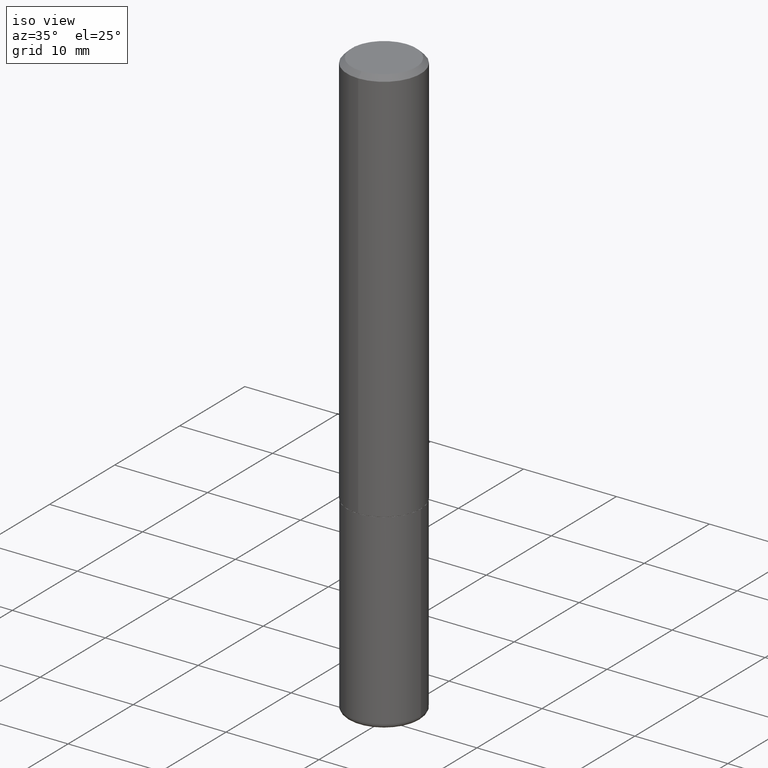
[diagram: clean part render]
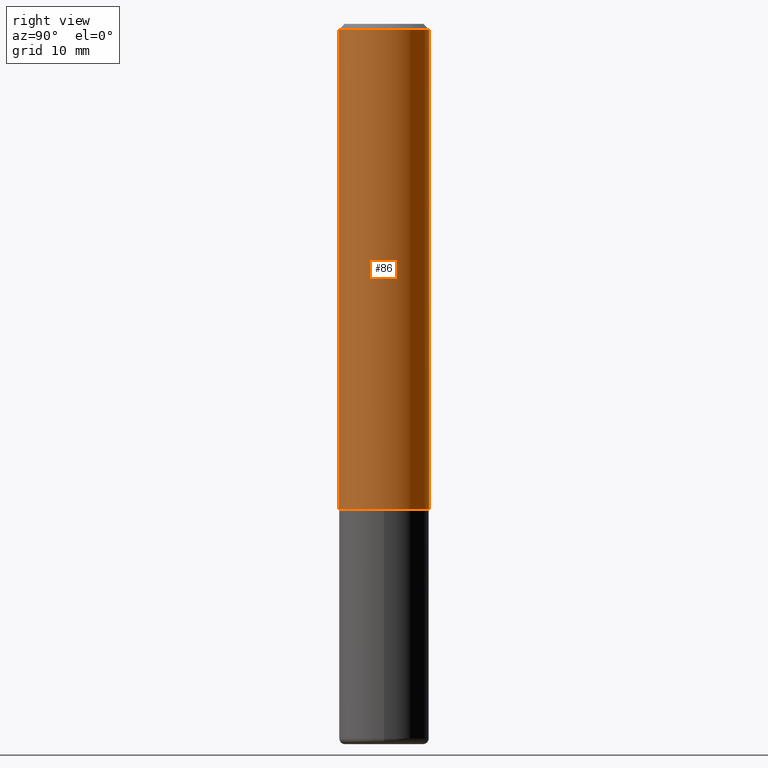
[diagram: tour spotlight — one face highlighted and labeled with its STEP entity id]
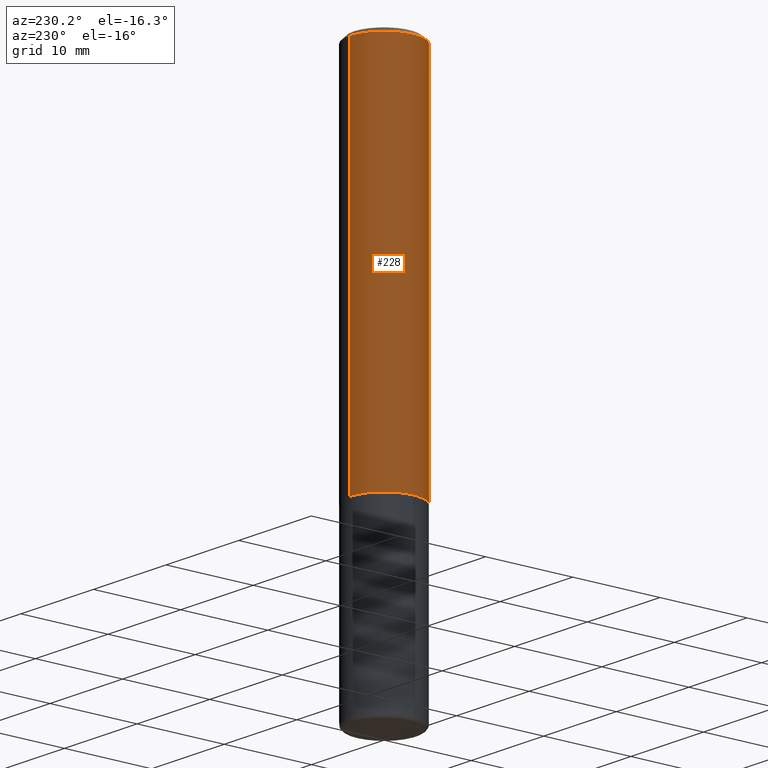
[diagram: tour spotlight — one face highlighted and labeled with its STEP entity id]
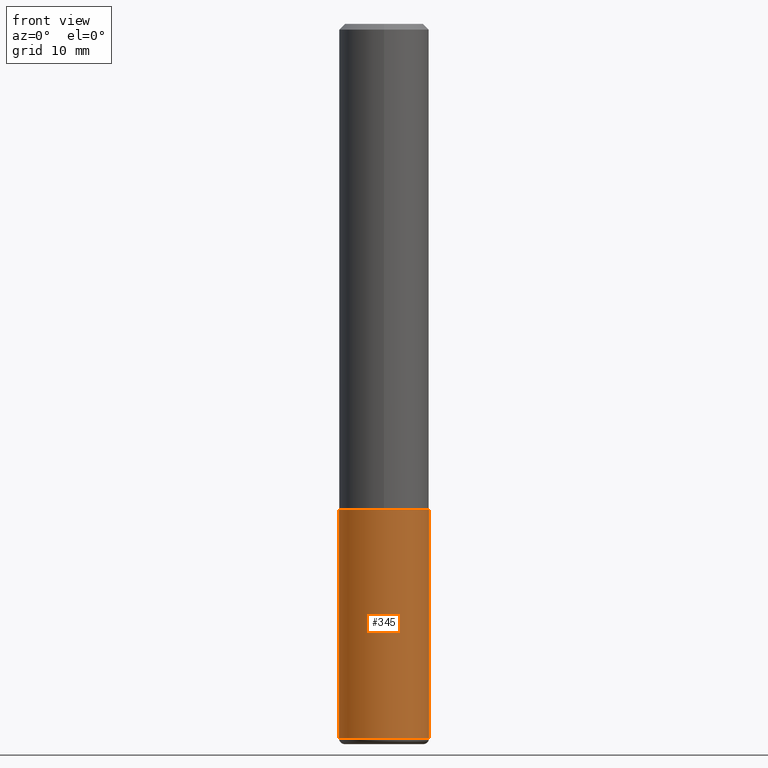
[diagram: tour spotlight — one face highlighted and labeled with its STEP entity id]
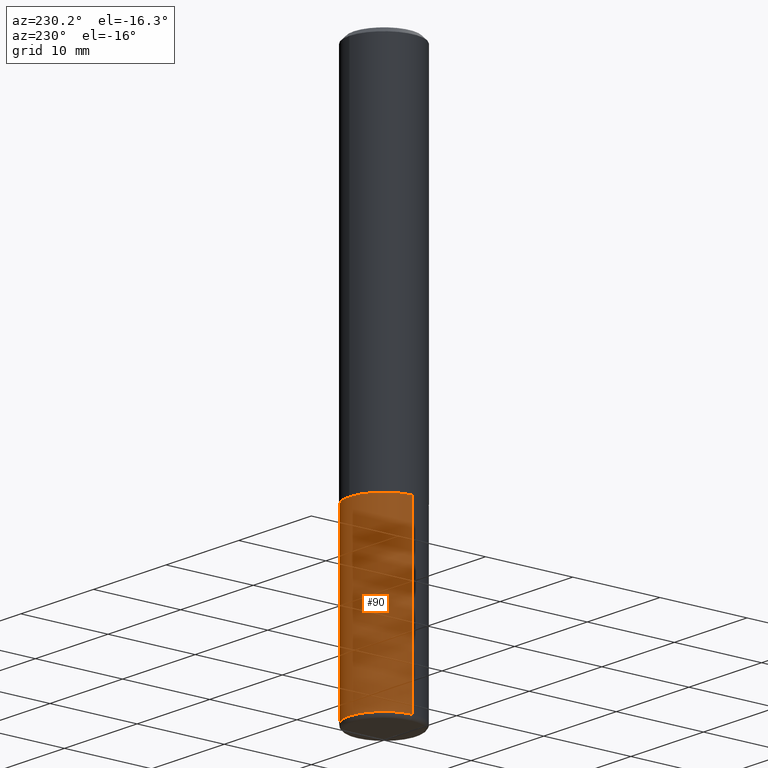
[diagram: tour spotlight — one face highlighted and labeled with its STEP entity id]
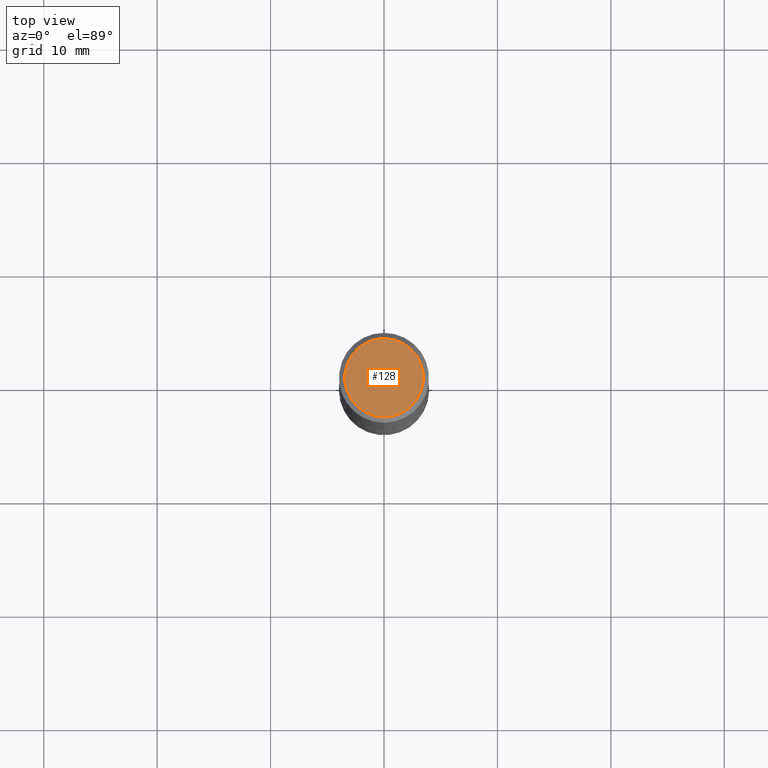
[diagram: tour spotlight — one face highlighted and labeled with its STEP entity id]
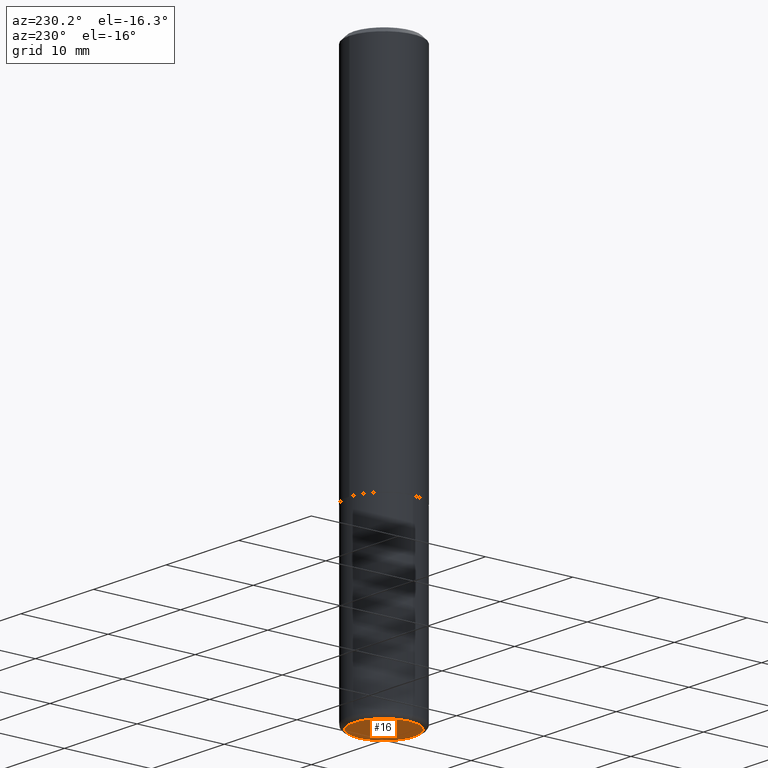
[diagram: tour spotlight — one face highlighted and labeled with its STEP entity id]
A machine part: a face-by-face anatomy tour. The part has 14 B-rep faces; the first image is the clean iso view, then the 6 largest visible faces are spotlighted one at a time (largest first), each with its STEP entity span.

Face 1 — right view, entity #86. In plain terms, the highlighted cylindrical surface (partial cylindrical patch) has radius 3.9688 mm, axis along (-0, 0, 1).
Definition (entity closure, byte-faithful):
#1 = CARTESIAN_POINT ( 'NONE',  ( -1.091087918388479765E-15, -0.1562500000000001110, 5.457320719771705199E-16 ) ) ;
#17 = VECTOR ( 'NONE', #159, 39.37007874015748143 ) ;
#21 = AXIS2_PLACEMENT_3D ( 'NONE', #220, #353, #61 ) ;
#26 = CYLINDRICAL_SURFACE ( 'NONE', #348, 0.1562500000000001110 ) ;
#30 = EDGE_CURVE ( 'NONE', #179, #242, #67, .T. ) ;
#57 = EDGE_LOOP ( 'NONE', ( #89, #146, #78, #378 ) ) ;
#61 = DIRECTION ( 'NONE',  ( -6.982962677686265922E-15, -1.000000000000000000, 3.496765431890251792E-15 ) ) ;
#67 = LINE ( 'NONE', #1, #17 ) ;
#77 = AXIS2_PLACEMENT_3D ( 'NONE', #153, #286, #413 ) ;
#78 = ORIENTED_EDGE ( 'NONE', *, *, #414, .F. ) ;
#86 = ADVANCED_FACE ( 'NONE', ( #249 ), #26, .T. ) ;
#89 = ORIENTED_EDGE ( 'NONE', *, *, #184, .T. ) ;
#96 = CARTESIAN_POINT ( 'NONE',  ( -1.091087918388439336E-15, -0.1562500000000060785, -1.685999999999999721 ) ) ;
#106 = DIRECTION ( 'NONE',  ( -2.444628112078009112E-29, 3.492685260653889592E-15, 1.000000000000000000 ) ) ;
#130 = DIRECTION ( 'NONE',  ( -6.982962677686265922E-15, -1.000000000000000000, 3.492685260653888803E-15 ) ) ;
#140 = VERTEX_POINT ( 'NONE', #359 ) ;
#146 = ORIENTED_EDGE ( 'NONE', *, *, #271, .T. ) ;
#153 = CARTESIAN_POINT ( 'NONE',  ( 4.889256224156025826E-31, -6.985370521307790228E-17, -0.02000000000000003511 ) ) ;
#159 = DIRECTION ( 'NONE',  ( -2.444628112078009112E-29, 3.492685260653889592E-15, 1.000000000000000000 ) ) ;
#168 = CARTESIAN_POINT ( 'NONE',  ( -1.071952812151801215E-15, -0.1562500000000000833, -0.01999999999999948694 ) ) ;
#179 = VERTEX_POINT ( 'NONE', #96 ) ;
#184 = EDGE_CURVE ( 'NONE', #179, #140, #276, .T. ) ;
#220 = CARTESIAN_POINT ( 'NONE',  ( 4.121642996963523974E-29, -5.888667349462458327E-15, -1.686000000000000165 ) ) ;
#242 = VERTEX_POINT ( 'NONE', #168 ) ;
#249 = FACE_OUTER_BOUND ( 'NONE', #57, .T. ) ;
#271 = EDGE_CURVE ( 'NONE', #140, #277, #274, .T. ) ;
#274 = LINE ( 'NONE', #391, #369 ) ;
#276 = CIRCLE ( 'NONE', #21, 0.1562500000000002220 ) ;
#277 = VERTEX_POINT ( 'NONE', #366 ) ;
#286 = DIRECTION ( 'NONE',  ( -2.444628112078009112E-29, 3.492685260653889197E-15, 1.000000000000000000 ) ) ;
#316 = DIRECTION ( 'NONE',  ( -2.444628112078009112E-29, 3.492685260653889197E-15, 1.000000000000000000 ) ) ;
#348 = AXIS2_PLACEMENT_3D ( 'NONE', #381, #316, #130 ) ;
#353 = DIRECTION ( 'NONE',  ( -2.444628112078009112E-29, 3.492685260653889197E-15, 1.000000000000000000 ) ) ;
#357 = CIRCLE ( 'NONE', #77, 0.1562500000000000000 ) ;
#359 = CARTESIAN_POINT ( 'NONE',  ( 1.110223024625178431E-15, 0.1562499999999943379, -1.686000000000000831 ) ) ;
#366 = CARTESIAN_POINT ( 'NONE',  ( 1.091087918388479568E-15, 0.1562499999999999445, -0.02000000000000057981 ) ) ;
#369 = VECTOR ( 'NONE', #106, 39.37007874015748143 ) ;
#378 = ORIENTED_EDGE ( 'NONE', *, *, #30, .F. ) ;
#381 = CARTESIAN_POINT ( 'NONE',  ( 0.000000000000000000, 0.000000000000000000, 0.000000000000000000 ) ) ;
#391 = CARTESIAN_POINT ( 'NONE',  ( 1.110223024625157132E-15, 0.1562500000000001110, -5.457320719771705199E-16 ) ) ;
#413 = DIRECTION ( 'NONE',  ( -6.982962677686265133E-15, -1.000000000000000000, 3.496765431890256920E-15 ) ) ;
#414 = EDGE_CURVE ( 'NONE', #242, #277, #357, .T. ) ;

Face 2 — auxiliary view, entity #228. In plain terms, the highlighted cylindrical surface (partial cylindrical patch) has radius 3.9688 mm, axis along (-0, 0, 1).
Definition (entity closure, byte-faithful):
#1 = CARTESIAN_POINT ( 'NONE',  ( -1.091087918388479765E-15, -0.1562500000000001110, 5.457320719771705199E-16 ) ) ;
#12 = EDGE_CURVE ( 'NONE', #140, #179, #285, .T. ) ;
#17 = VECTOR ( 'NONE', #159, 39.37007874015748143 ) ;
#18 = CARTESIAN_POINT ( 'NONE',  ( 4.121642996963523974E-29, -5.888667349462458327E-15, -1.686000000000000165 ) ) ;
#30 = EDGE_CURVE ( 'NONE', #179, #242, #67, .T. ) ;
#51 = DIRECTION ( 'NONE',  ( -2.444628112078009112E-29, 3.492685260653889197E-15, 1.000000000000000000 ) ) ;
#52 = ORIENTED_EDGE ( 'NONE', *, *, #82, .F. ) ;
#62 = AXIS2_PLACEMENT_3D ( 'NONE', #127, #189, #94 ) ;
#67 = LINE ( 'NONE', #1, #17 ) ;
#82 = EDGE_CURVE ( 'NONE', #277, #242, #166, .T. ) ;
#94 = DIRECTION ( 'NONE',  ( -6.982962677686265133E-15, -1.000000000000000000, 3.496765431890256920E-15 ) ) ;
#96 = CARTESIAN_POINT ( 'NONE',  ( -1.091087918388439336E-15, -0.1562500000000060785, -1.685999999999999721 ) ) ;
#106 = DIRECTION ( 'NONE',  ( -2.444628112078009112E-29, 3.492685260653889592E-15, 1.000000000000000000 ) ) ;
#110 = CARTESIAN_POINT ( 'NONE',  ( 0.000000000000000000, 0.000000000000000000, 0.000000000000000000 ) ) ;
#127 = CARTESIAN_POINT ( 'NONE',  ( 4.889256224156025826E-31, -6.985370521307790228E-17, -0.02000000000000003511 ) ) ;
#135 = DIRECTION ( 'NONE',  ( -6.982962677686265922E-15, -1.000000000000000000, 3.492685260653888803E-15 ) ) ;
#140 = VERTEX_POINT ( 'NONE', #359 ) ;
#147 = DIRECTION ( 'NONE',  ( -6.982962677686265922E-15, -1.000000000000000000, 3.496765431890251792E-15 ) ) ;
#159 = DIRECTION ( 'NONE',  ( -2.444628112078009112E-29, 3.492685260653889592E-15, 1.000000000000000000 ) ) ;
#166 = CIRCLE ( 'NONE', #62, 0.1562500000000000000 ) ;
#168 = CARTESIAN_POINT ( 'NONE',  ( -1.071952812151801215E-15, -0.1562500000000000833, -0.01999999999999948694 ) ) ;
#173 = CYLINDRICAL_SURFACE ( 'NONE', #216, 0.1562500000000001110 ) ;
#179 = VERTEX_POINT ( 'NONE', #96 ) ;
#189 = DIRECTION ( 'NONE',  ( -2.444628112078009112E-29, 3.492685260653889197E-15, 1.000000000000000000 ) ) ;
#203 = ORIENTED_EDGE ( 'NONE', *, *, #271, .F. ) ;
#216 = AXIS2_PLACEMENT_3D ( 'NONE', #110, #398, #135 ) ;
#228 = ADVANCED_FACE ( 'NONE', ( #305 ), #173, .T. ) ;
#242 = VERTEX_POINT ( 'NONE', #168 ) ;
#271 = EDGE_CURVE ( 'NONE', #140, #277, #274, .T. ) ;
#274 = LINE ( 'NONE', #391, #369 ) ;
#275 = AXIS2_PLACEMENT_3D ( 'NONE', #18, #51, #147 ) ;
#277 = VERTEX_POINT ( 'NONE', #366 ) ;
#278 = EDGE_LOOP ( 'NONE', ( #203, #299, #371, #52 ) ) ;
#285 = CIRCLE ( 'NONE', #275, 0.1562500000000002220 ) ;
#299 = ORIENTED_EDGE ( 'NONE', *, *, #12, .T. ) ;
#305 = FACE_OUTER_BOUND ( 'NONE', #278, .T. ) ;
#359 = CARTESIAN_POINT ( 'NONE',  ( 1.110223024625178431E-15, 0.1562499999999943379, -1.686000000000000831 ) ) ;
#366 = CARTESIAN_POINT ( 'NONE',  ( 1.091087918388479568E-15, 0.1562499999999999445, -0.02000000000000057981 ) ) ;
#369 = VECTOR ( 'NONE', #106, 39.37007874015748143 ) ;
#371 = ORIENTED_EDGE ( 'NONE', *, *, #30, .T. ) ;
#391 = CARTESIAN_POINT ( 'NONE',  ( 1.110223024625157132E-15, 0.1562500000000001110, -5.457320719771705199E-16 ) ) ;
#398 = DIRECTION ( 'NONE',  ( -2.444628112078009112E-29, 3.492685260653889197E-15, 1.000000000000000000 ) ) ;

Face 3 — front view, entity #345. In plain terms, the highlighted cylindrical surface (partial cylindrical patch) has radius 3.9688 mm, axis along (-0, 0, 1).
Definition (entity closure, byte-faithful):
#10 = ORIENTED_EDGE ( 'NONE', *, *, #283, .F. ) ;
#20 = VERTEX_POINT ( 'NONE', #415 ) ;
#39 = ORIENTED_EDGE ( 'NONE', *, *, #209, .T. ) ;
#46 = AXIS2_PLACEMENT_3D ( 'NONE', #157, #95, #418 ) ;
#54 = AXIS2_PLACEMENT_3D ( 'NONE', #72, #300, #204 ) ;
#64 = DIRECTION ( 'NONE',  ( -2.445468806185136877E-29, 3.491481338843145188E-15, 1.000000000000000000 ) ) ;
#72 = CARTESIAN_POINT ( 'NONE',  ( 4.125505876034326327E-29, -5.890129018628388122E-15, -1.687000000000000277 ) ) ;
#80 = ORIENTED_EDGE ( 'NONE', *, *, #121, .F. ) ;
#95 = DIRECTION ( 'NONE',  ( -2.445468806185136597E-29, 3.491481338843145583E-15, 1.000000000000000000 ) ) ;
#109 = ORIENTED_EDGE ( 'NONE', *, *, #174, .T. ) ;
#115 = VERTEX_POINT ( 'NONE', #225 ) ;
#121 = EDGE_CURVE ( 'NONE', #172, #20, #390, .T. ) ;
#131 = CYLINDRICAL_SURFACE ( 'NONE', #46, 0.1562500000000000000 ) ;
#132 = CARTESIAN_POINT ( 'NONE',  ( 6.064762639339139522E-29, -8.658873720331001644E-15, -2.480000000000000426 ) ) ;
#149 = AXIS2_PLACEMENT_3D ( 'NONE', #132, #222, #256 ) ;
#157 = CARTESIAN_POINT ( 'NONE',  ( 0.000000000000000000, 0.000000000000000000, 0.000000000000000000 ) ) ;
#170 = CARTESIAN_POINT ( 'NONE',  ( 0.1562500000000000000, -6.981216937016868084E-15, -1.687000000000000277 ) ) ;
#172 = VERTEX_POINT ( 'NONE', #284 ) ;
#174 = EDGE_CURVE ( 'NONE', #115, #213, #412, .T. ) ;
#175 = VECTOR ( 'NONE', #64, 39.37007874015748143 ) ;
#192 = CARTESIAN_POINT ( 'NONE',  ( 0.1562500000000000000, -1.091087918388479174E-15, 7.619026212181150377E-30 ) ) ;
#204 = DIRECTION ( 'NONE',  ( 1.000000000000000000, -6.982962677686269077E-15, 0.000000000000000000 ) ) ;
#209 = EDGE_CURVE ( 'NONE', #172, #115, #301, .T. ) ;
#213 = VERTEX_POINT ( 'NONE', #170 ) ;
#222 = DIRECTION ( 'NONE',  ( -2.445468806185136597E-29, 3.491481338843145583E-15, 1.000000000000000000 ) ) ;
#225 = CARTESIAN_POINT ( 'NONE',  ( 0.1562499999999999445, -9.749961638719480029E-15, -2.480000000000000426 ) ) ;
#226 = CARTESIAN_POINT ( 'NONE',  ( -0.1562500000000000000, 1.110223024625156540E-15, -7.685836078523291160E-30 ) ) ;
#229 = CIRCLE ( 'NONE', #54, 0.1562500000000000000 ) ;
#250 = VECTOR ( 'NONE', #383, 39.37007874015748143 ) ;
#256 = DIRECTION ( 'NONE',  ( 1.000000000000000000, -6.982962677686262766E-15, 0.000000000000000000 ) ) ;
#283 = EDGE_CURVE ( 'NONE', #20, #213, #229, .T. ) ;
#284 = CARTESIAN_POINT ( 'NONE',  ( -0.1562499999999999445, -7.548650695705845104E-15, -2.480000000000000426 ) ) ;
#300 = DIRECTION ( 'NONE',  ( -2.445468806185136597E-29, 3.491481338843145583E-15, 1.000000000000000000 ) ) ;
#301 = CIRCLE ( 'NONE', #149, 0.1562500000000000000 ) ;
#345 = ADVANCED_FACE ( 'NONE', ( #411 ), #131, .T. ) ;
#383 = DIRECTION ( 'NONE',  ( -2.445468806185136877E-29, 3.491481338843145188E-15, 1.000000000000000000 ) ) ;
#390 = LINE ( 'NONE', #226, #175 ) ;
#401 = EDGE_LOOP ( 'NONE', ( #80, #39, #109, #10 ) ) ;
#411 = FACE_OUTER_BOUND ( 'NONE', #401, .T. ) ;
#412 = LINE ( 'NONE', #192, #250 ) ;
#415 = CARTESIAN_POINT ( 'NONE',  ( -0.1562500000000000000, -6.164278344854539131E-15, -1.687000000000000277 ) ) ;
#418 = DIRECTION ( 'NONE',  ( 1.000000000000000000, -6.982962677686266711E-15, 4.876176775795936353E-29 ) ) ;

Face 4 — auxiliary view, entity #90. In plain terms, the highlighted cylindrical surface (partial cylindrical patch) has radius 3.9688 mm, axis along (-0, 0, 1).
Definition (entity closure, byte-faithful):
#20 = VERTEX_POINT ( 'NONE', #415 ) ;
#27 = AXIS2_PLACEMENT_3D ( 'NONE', #152, #319, #124 ) ;
#33 = DIRECTION ( 'NONE',  ( -2.445468806185136597E-29, 3.491481338843145583E-15, 1.000000000000000000 ) ) ;
#44 = EDGE_CURVE ( 'NONE', #213, #20, #68, .T. ) ;
#64 = DIRECTION ( 'NONE',  ( -2.445468806185136877E-29, 3.491481338843145188E-15, 1.000000000000000000 ) ) ;
#66 = DIRECTION ( 'NONE',  ( 1.000000000000000000, -6.982962677686266711E-15, 4.876176775795936353E-29 ) ) ;
#68 = CIRCLE ( 'NONE', #27, 0.1562500000000000000 ) ;
#85 = AXIS2_PLACEMENT_3D ( 'NONE', #327, #33, #254 ) ;
#90 = ADVANCED_FACE ( 'NONE', ( #219 ), #294, .T. ) ;
#114 = EDGE_CURVE ( 'NONE', #115, #172, #235, .T. ) ;
#115 = VERTEX_POINT ( 'NONE', #225 ) ;
#121 = EDGE_CURVE ( 'NONE', #172, #20, #390, .T. ) ;
#124 = DIRECTION ( 'NONE',  ( 1.000000000000000000, -6.982962677686269077E-15, 0.000000000000000000 ) ) ;
#152 = CARTESIAN_POINT ( 'NONE',  ( 4.125505876034326327E-29, -5.890129018628388122E-15, -1.687000000000000277 ) ) ;
#170 = CARTESIAN_POINT ( 'NONE',  ( 0.1562500000000000000, -6.981216937016868084E-15, -1.687000000000000277 ) ) ;
#172 = VERTEX_POINT ( 'NONE', #284 ) ;
#174 = EDGE_CURVE ( 'NONE', #115, #213, #412, .T. ) ;
#175 = VECTOR ( 'NONE', #64, 39.37007874015748143 ) ;
#177 = ORIENTED_EDGE ( 'NONE', *, *, #174, .F. ) ;
#192 = CARTESIAN_POINT ( 'NONE',  ( 0.1562500000000000000, -1.091087918388479174E-15, 7.619026212181150377E-30 ) ) ;
#213 = VERTEX_POINT ( 'NONE', #170 ) ;
#219 = FACE_OUTER_BOUND ( 'NONE', #374, .T. ) ;
#225 = CARTESIAN_POINT ( 'NONE',  ( 0.1562499999999999445, -9.749961638719480029E-15, -2.480000000000000426 ) ) ;
#226 = CARTESIAN_POINT ( 'NONE',  ( -0.1562500000000000000, 1.110223024625156540E-15, -7.685836078523291160E-30 ) ) ;
#235 = CIRCLE ( 'NONE', #85, 0.1562500000000000000 ) ;
#241 = ORIENTED_EDGE ( 'NONE', *, *, #121, .T. ) ;
#250 = VECTOR ( 'NONE', #383, 39.37007874015748143 ) ;
#254 = DIRECTION ( 'NONE',  ( 1.000000000000000000, -6.982962677686262766E-15, 0.000000000000000000 ) ) ;
#284 = CARTESIAN_POINT ( 'NONE',  ( -0.1562499999999999445, -7.548650695705845104E-15, -2.480000000000000426 ) ) ;
#294 = CYLINDRICAL_SURFACE ( 'NONE', #386, 0.1562500000000000000 ) ;
#319 = DIRECTION ( 'NONE',  ( -2.445468806185136597E-29, 3.491481338843145583E-15, 1.000000000000000000 ) ) ;
#327 = CARTESIAN_POINT ( 'NONE',  ( 6.064762639339139522E-29, -8.658873720331001644E-15, -2.480000000000000426 ) ) ;
#343 = ORIENTED_EDGE ( 'NONE', *, *, #44, .F. ) ;
#351 = DIRECTION ( 'NONE',  ( -2.445468806185136597E-29, 3.491481338843145583E-15, 1.000000000000000000 ) ) ;
#374 = EDGE_LOOP ( 'NONE', ( #404, #241, #343, #177 ) ) ;
#383 = DIRECTION ( 'NONE',  ( -2.445468806185136877E-29, 3.491481338843145188E-15, 1.000000000000000000 ) ) ;
#386 = AXIS2_PLACEMENT_3D ( 'NONE', #417, #351, #66 ) ;
#390 = LINE ( 'NONE', #226, #175 ) ;
#404 = ORIENTED_EDGE ( 'NONE', *, *, #114, .T. ) ;
#412 = LINE ( 'NONE', #192, #250 ) ;
#415 = CARTESIAN_POINT ( 'NONE',  ( -0.1562500000000000000, -6.164278344854539131E-15, -1.687000000000000277 ) ) ;
#417 = CARTESIAN_POINT ( 'NONE',  ( 0.000000000000000000, 0.000000000000000000, 0.000000000000000000 ) ) ;

Face 5 — top view, entity #128. In plain terms, the highlighted planar face has unit normal (0, -0, -1).
Definition (entity closure, byte-faithful):
#2 = CIRCLE ( 'NONE', #92, 0.1362500000000002875 ) ;
#3 = CARTESIAN_POINT ( 'NONE',  ( 6.256945348280115770E-45, -8.939413192004363337E-31, -2.559467150593109485E-16 ) ) ;
#24 = DIRECTION ( 'NONE',  ( 6.982962677686265922E-15, 1.000000000000000000, -3.492685260653889592E-15 ) ) ;
#76 = CARTESIAN_POINT ( 'NONE',  ( 1.021258291611617650E-15, 0.1362500000000002875, -7.318250818234043549E-16 ) ) ;
#92 = AXIS2_PLACEMENT_3D ( 'NONE', #237, #397, #339 ) ;
#105 = ORIENTED_EDGE ( 'NONE', *, *, #154, .T. ) ;
#118 = AXIS2_PLACEMENT_3D ( 'NONE', #3, #133, #384 ) ;
#128 = ADVANCED_FACE ( 'NONE', ( #155 ), #260, .F. ) ;
#133 = DIRECTION ( 'NONE',  ( -2.444628112078009112E-29, 3.492685260653889197E-15, 1.000000000000000000 ) ) ;
#154 = EDGE_CURVE ( 'NONE', #246, #395, #295, .T. ) ;
#155 = FACE_OUTER_BOUND ( 'NONE', #180, .T. ) ;
#156 = AXIS2_PLACEMENT_3D ( 'NONE', #165, #288, #24 ) ;
#165 = CARTESIAN_POINT ( 'NONE',  ( 9.514286648347557326E-16, 0.1362500000000002875, -6.038517242937489300E-16 ) ) ;
#180 = EDGE_LOOP ( 'NONE', ( #105, #365 ) ) ;
#224 = CARTESIAN_POINT ( 'NONE',  ( -1.003347832174087067E-15, -0.1362500000000002875, 2.199316517047824334E-16 ) ) ;
#237 = CARTESIAN_POINT ( 'NONE',  ( 6.256945348280115770E-45, -8.939413192004363337E-31, -2.559467150593109485E-16 ) ) ;
#246 = VERTEX_POINT ( 'NONE', #76 ) ;
#260 = PLANE ( 'NONE',  #156 ) ;
#279 = EDGE_CURVE ( 'NONE', #395, #246, #2, .T. ) ;
#288 = DIRECTION ( 'NONE',  ( 2.444628112078008551E-29, -3.492685260653889592E-15, -1.000000000000000000 ) ) ;
#295 = CIRCLE ( 'NONE', #118, 0.1362500000000002875 ) ;
#339 = DIRECTION ( 'NONE',  ( -6.982962677686265922E-15, -1.000000000000000000, 3.492685260653889197E-15 ) ) ;
#365 = ORIENTED_EDGE ( 'NONE', *, *, #279, .T. ) ;
#384 = DIRECTION ( 'NONE',  ( -6.982962677686265922E-15, -1.000000000000000000, 3.492685260653889197E-15 ) ) ;
#395 = VERTEX_POINT ( 'NONE', #224 ) ;
#397 = DIRECTION ( 'NONE',  ( -2.444628112078009112E-29, 3.492685260653889197E-15, 1.000000000000000000 ) ) ;

Face 6 — auxiliary view, entity #16. In plain terms, the highlighted planar face has unit normal (0, -0, -1).
Definition (entity closure, byte-faithful):
#6 = CARTESIAN_POINT ( 'NONE',  ( 0.1362500000000000100, -9.680132011942619886E-15, -2.500000000000000000 ) ) ;
#15 = DIRECTION ( 'NONE',  ( -2.445468806185136597E-29, 3.491481338843145583E-15, 1.000000000000000000 ) ) ;
#16 = ADVANCED_FACE ( 'NONE', ( #245 ), #310, .T. ) ;
#36 = DIRECTION ( 'NONE',  ( 1.000000000000000000, -6.982962677686273021E-15, 0.000000000000000000 ) ) ;
#40 = CARTESIAN_POINT ( 'NONE',  ( 6.113672015462842613E-29, -8.728703347107864943E-15, -2.500000000000000000 ) ) ;
#43 = DIRECTION ( 'NONE',  ( 1.000000000000000000, -6.982962677686273021E-15, 0.000000000000000000 ) ) ;
#84 = ORIENTED_EDGE ( 'NONE', *, *, #231, .F. ) ;
#122 = DIRECTION ( 'NONE',  ( -1.000000000000000000, 6.982962677686265922E-15, -4.876176775795935793E-29 ) ) ;
#186 = AXIS2_PLACEMENT_3D ( 'NONE', #40, #270, #43 ) ;
#207 = CIRCLE ( 'NONE', #257, 0.1362500000000000100 ) ;
#231 = EDGE_CURVE ( 'NONE', #313, #335, #207, .T. ) ;
#245 = FACE_OUTER_BOUND ( 'NONE', #373, .T. ) ;
#257 = AXIS2_PLACEMENT_3D ( 'NONE', #328, #15, #36 ) ;
#265 = EDGE_CURVE ( 'NONE', #335, #313, #399, .T. ) ;
#270 = DIRECTION ( 'NONE',  ( -2.445468806185136597E-29, 3.491481338843145583E-15, 1.000000000000000000 ) ) ;
#282 = CARTESIAN_POINT ( 'NONE',  ( 6.113672015462842613E-29, -8.728703347107864943E-15, -2.500000000000000000 ) ) ;
#310 = PLANE ( 'NONE',  #329 ) ;
#313 = VERTEX_POINT ( 'NONE', #6 ) ;
#326 = CARTESIAN_POINT ( 'NONE',  ( -0.1362500000000000100, -7.654619782670286835E-15, -2.500000000000000000 ) ) ;
#328 = CARTESIAN_POINT ( 'NONE',  ( 6.113672015462842613E-29, -8.728703347107864943E-15, -2.500000000000000000 ) ) ;
#329 = AXIS2_PLACEMENT_3D ( 'NONE', #282, #410, #122 ) ;
#335 = VERTEX_POINT ( 'NONE', #326 ) ;
#370 = ORIENTED_EDGE ( 'NONE', *, *, #265, .F. ) ;
#373 = EDGE_LOOP ( 'NONE', ( #84, #370 ) ) ;
#399 = CIRCLE ( 'NONE', #186, 0.1362500000000000100 ) ;
#410 = DIRECTION ( 'NONE',  ( 2.438088387897960049E-29, -3.491481338843145188E-15, -1.000000000000000000 ) ) ;